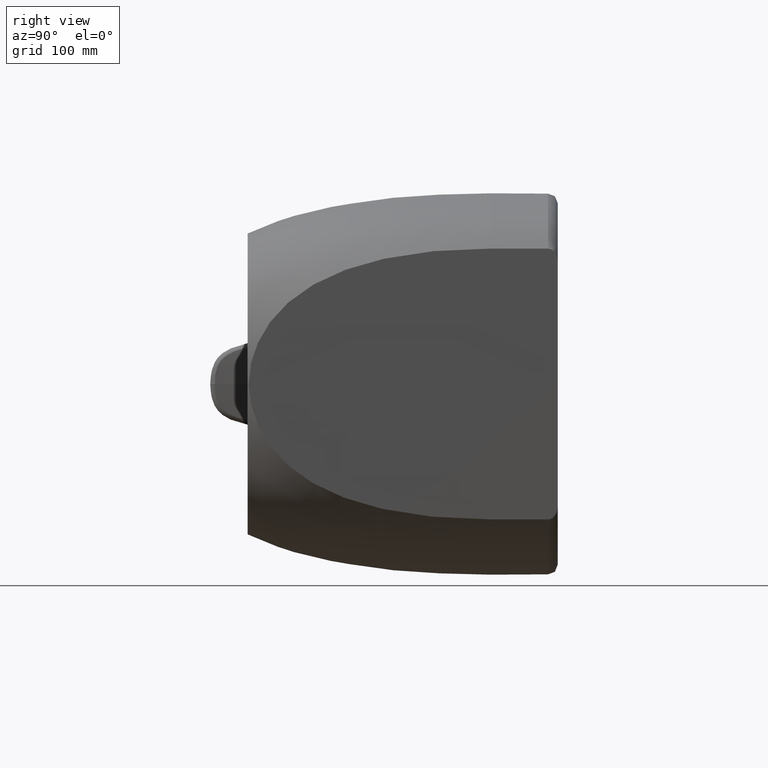
[diagram: clean part render]
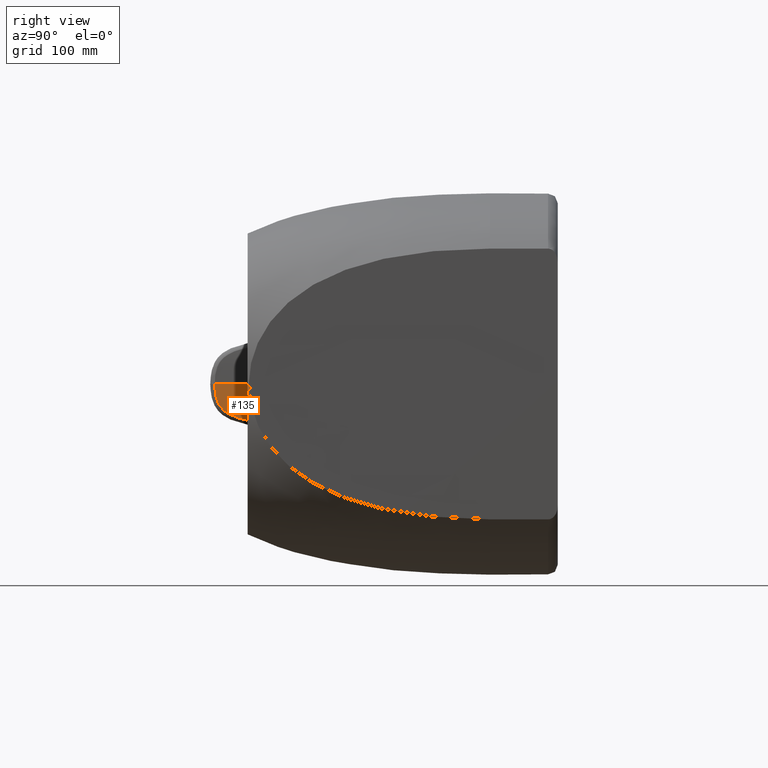
[diagram: same view with one face highlighted and labeled with its STEP entity id]
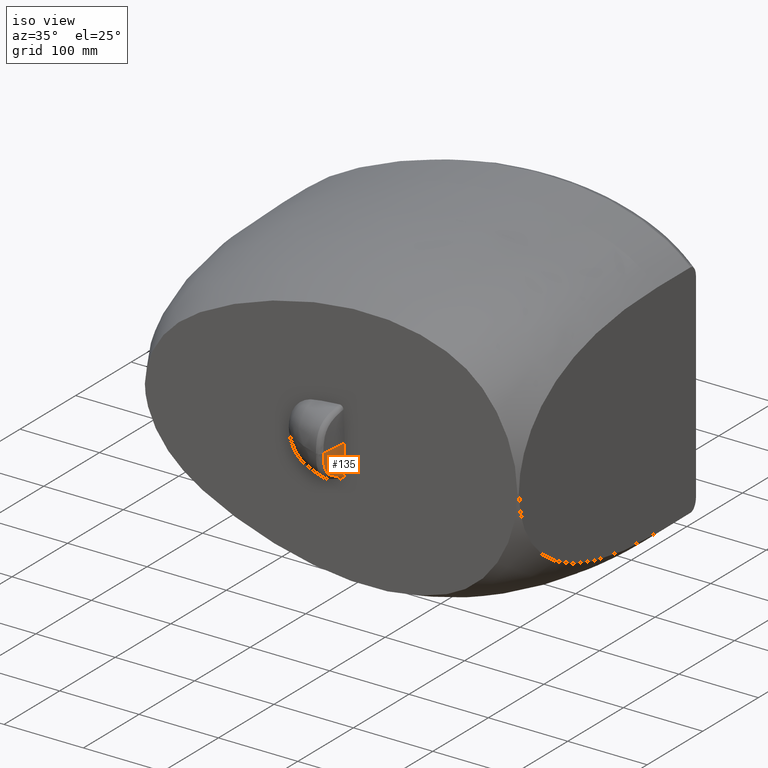
[diagram: same view with one face highlighted and labeled with its STEP entity id]
A machine part, right view. The second image highlights one B-rep face of the part: STEP entity #135.
A second angle (iso view) of the same face is appended — the face is thin or edge-on in the first view.
In plain terms, the highlighted face is a SurfaceOfRevolution surface.
Its self-contained STEP definition (entity closure, byte-faithful):
#42=SURFACE_OF_REVOLUTION('',#921,#46);
#46=AXIS1_PLACEMENT('',#1810,#1051);
#75=(
BOUNDED_CURVE()
B_SPLINE_CURVE(3,(#1800,#1801,#1802,#1803),.UNSPECIFIED.,.F.,.F.)
B_SPLINE_CURVE_WITH_KNOTS((4,4),(0.,1.),.UNSPECIFIED.)
CURVE()
GEOMETRIC_REPRESENTATION_ITEM()
RATIONAL_B_SPLINE_CURVE((1.,0.999970847690484,0.999970847690484,1.))
REPRESENTATION_ITEM('')
);
#135=ADVANCED_FACE('',(#234),#42,.F.);
#234=FACE_OUTER_BOUND('',#296,.T.);
#296=EDGE_LOOP('',(#380,#381,#382));
#380=ORIENTED_EDGE('',*,*,#772,.T.);
#381=ORIENTED_EDGE('',*,*,#773,.T.);
#382=ORIENTED_EDGE('',*,*,#764,.T.);
#671=VERTEX_POINT('',#1287);
#672=VERTEX_POINT('',#1314);
#677=VERTEX_POINT('',#1799);
#764=EDGE_CURVE('',#672,#671,#913,.T.);
#772=EDGE_CURVE('',#671,#677,#920,.T.);
#773=EDGE_CURVE('',#677,#672,#75,.T.);
#913=B_SPLINE_CURVE_WITH_KNOTS('',3,(#1288,#1289,#1290,#1291,#1292,#1293,
#1294,#1295,#1296,#1297,#1298,#1299,#1300,#1301,#1302,#1303,#1304,#1305,
#1306,#1307,#1308,#1309,#1310,#1311,#1312,#1313),.UNSPECIFIED.,.F.,.F.,
(4,2,2,2,2,2,2,1,1,1,2,2,1,2,4),(0.,0.249999999999993,0.312499999999991,
0.34374999999999,0.37499999999999,0.499999999999989,0.562499999999988,0.624999999999987,
0.656249999999987,0.671874999999987,0.675781249999987,0.679687499999987,
0.687499999999988,0.74999999999999,1.),.UNSPECIFIED.);
#920=B_SPLINE_CURVE_WITH_KNOTS('',3,(#1795,#1796,#1797,#1798),
 .UNSPECIFIED.,.F.,.F.,(4,4),(0.,1.),.UNSPECIFIED.);
#921=B_SPLINE_CURVE_WITH_KNOTS('',3,(#1804,#1805,#1806,#1807,#1808,#1809),
 .UNSPECIFIED.,.F.,.F.,(4,2,4),(0.,0.5,1.),.UNSPECIFIED.);
#1051=DIRECTION('',(0.,0.,1.));
#1287=CARTESIAN_POINT('',(247.892925364305,99.4456627419485,-72.0823708599009));
#1288=CARTESIAN_POINT('',(246.280156813694,65.5368546178772,-34.6846846846697));
#1289=CARTESIAN_POINT('',(246.28015684857,65.5368550413054,-40.8228415408623));
#1290=CARTESIAN_POINT('',(246.21511891216,66.1777714825104,-46.0118792511184));
#1291=CARTESIAN_POINT('',(246.173587483286,67.7976057561665,-51.321135137529));
#1292=CARTESIAN_POINT('',(246.167122227762,68.1624828851784,-52.3241209830554));
#1293=CARTESIAN_POINT('',(246.162015188438,68.7714155421408,-53.7404374384351));
#1294=CARTESIAN_POINT('',(246.161037940641,68.9468338999421,-54.1250754166616));
#1295=CARTESIAN_POINT('',(246.161031870452,69.5141206582026,-55.2444114342517));
#1296=CARTESIAN_POINT('',(246.162330849675,69.8168400083601,-55.7892320700213));
#1297=CARTESIAN_POINT('',(246.176264376171,71.4259300994612,-58.4391603948639));
#1298=CARTESIAN_POINT('',(246.211311808256,73.0188195140925,-60.3217569934706));
#1299=CARTESIAN_POINT('',(246.316395766297,75.8683099094485,-62.7906616925236));
#1300=CARTESIAN_POINT('',(246.3528337747,76.722784287174,-63.4263158382863));
#1301=CARTESIAN_POINT('',(246.445317176827,78.697048304728,-64.7488632629137));
#1302=CARTESIAN_POINT('',(246.526509392191,80.2886422800905,-65.6952801142241));
#1303=CARTESIAN_POINT('',(246.643938070277,82.3396378014797,-66.7198963735101));
#1304=CARTESIAN_POINT('',(246.703966781587,83.3369567287576,-67.1771553746369));
#1305=CARTESIAN_POINT('',(246.727956612766,83.7277640638536,-67.3500672207813));
#1306=CARTESIAN_POINT('',(246.737625078758,83.8846648513735,-67.4189954118013));
#1307=CARTESIAN_POINT('',(246.744133900548,83.9897879908185,-67.4647666337606));
#1308=CARTESIAN_POINT('',(246.753725022706,84.1442620197713,-67.5316748208741));
#1309=CARTESIAN_POINT('',(246.81185714841,85.0759925079144,-67.9315357730376));
#1310=CARTESIAN_POINT('',(246.875291450224,86.0517002805999,-68.3171042463482));
#1311=CARTESIAN_POINT('',(247.179294999464,90.5619048004062,-69.9743076384252));
#1312=CARTESIAN_POINT('',(247.492991682214,94.7260551149018,-71.1194885487765));
#1313=CARTESIAN_POINT('',(247.89272834595,99.4455376746007,-72.084406845013));
#1314=CARTESIAN_POINT('',(246.280156814027,65.5368546174775,-34.6850172726991));
#1795=CARTESIAN_POINT('',(247.892728149924,99.4455353602695,-72.0844063718855));
#1796=CARTESIAN_POINT('',(248.893507873811,99.4455353602694,-59.6425931062365));
#1797=CARTESIAN_POINT('',(249.392621453257,99.4455353596279,-47.1759527628164));
#1798=CARTESIAN_POINT('',(249.392621458348,99.4455353602695,-34.684684873345));
#1799=CARTESIAN_POINT('',(249.392621458673,99.4455353598458,-34.6850391366619));
#1800=CARTESIAN_POINT('',(249.392621458348,99.4455353602685,-34.6846846846697));
#1801=CARTESIAN_POINT('',(248.249443577839,88.1525091385247,-34.6846846846697));
#1802=CARTESIAN_POINT('',(247.211925116895,76.8492860426694,-34.6846846846697));
#1803=CARTESIAN_POINT('',(246.280156813693,65.5368546178772,-34.6846846846697));
#1804=CARTESIAN_POINT('',(252.724204571942,266.221675823353,-173.460050458501));
#1805=CARTESIAN_POINT('',(259.852289189637,266.452087952046,-151.020854621337));
#1806=CARTESIAN_POINT('',(265.226036883392,266.625791923984,-128.160507355053));
#1807=CARTESIAN_POINT('',(272.448798593455,266.859264447097,-81.6342945901936));
#1808=CARTESIAN_POINT('',(274.258391706994,266.917758730445,-58.2302593295607));
#1809=CARTESIAN_POINT('',(274.258391706995,266.917758730445,-34.6846846846697));
#1810=CARTESIAN_POINT('',(2060.71841684967,-83.9125427161736,-34.6846846846698));